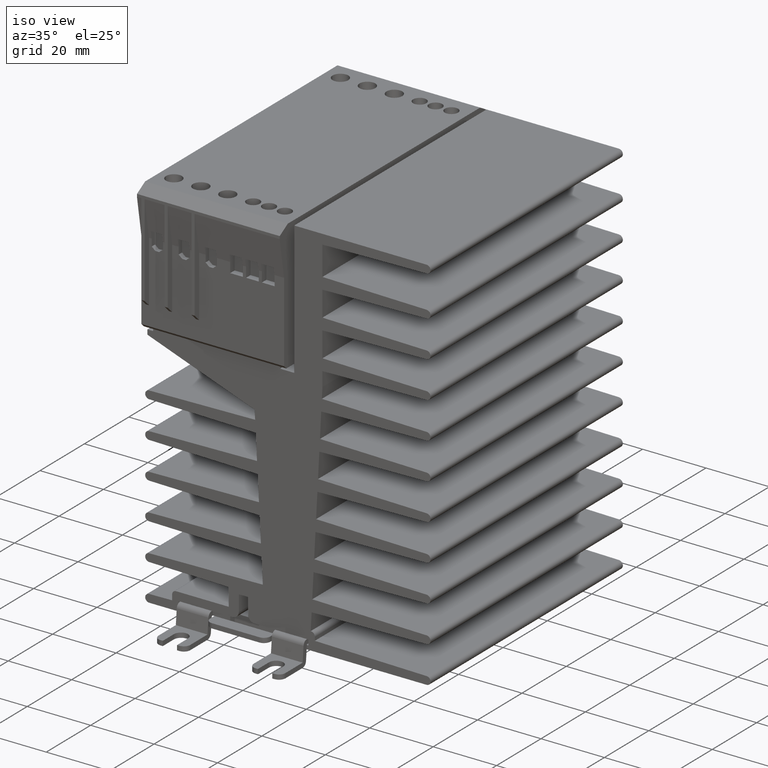
[diagram: clean part render]
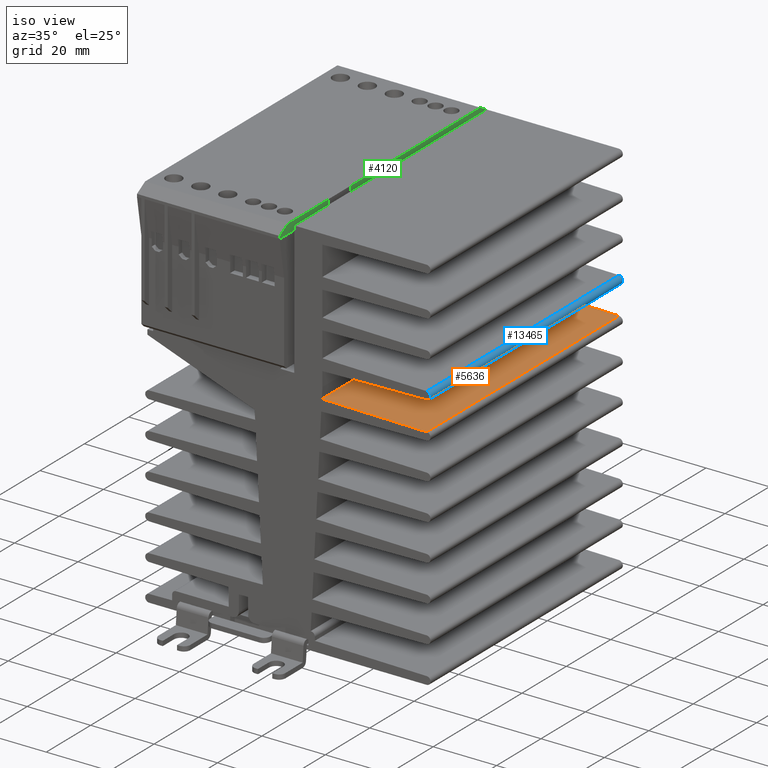
[diagram: same view with three faces highlighted in distinct colors, each labeled with its STEP entity id]
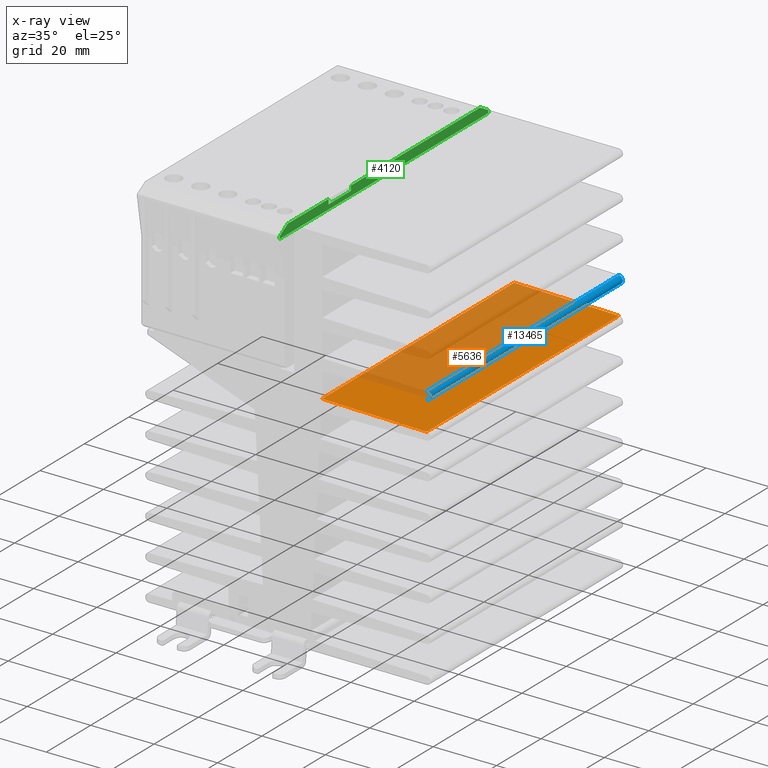
[diagram: x-ray of the same camera — body ghosted, the three highlighted faces saturated]
A machine part, iso view with three faces highlighted in distinct colors.
The next image is the same camera in x-ray (body ghosted, the three faces saturated) — at least one of them is partly hidden behind the body in this view.
Their STEP definitions:

[orange] entity #5636 — the highlighted planar face has unit normal (0.0175, 0, 0.9998).
#1420 = CARTESIAN_POINT ( 'NONE',  ( 2.609126594804984212, -1.704724409448818978, -0.2618185189391531442 ) ) ;
#1557 = AXIS2_PLACEMENT_3D ( 'NONE', #9576, #13004, #3228 ) ;
#1734 = DIRECTION ( 'NONE',  ( -0.9998476951563912696, 0.000000000000000000, 0.01745240643728300511 ) ) ;
#1838 = ORIENTED_EDGE ( 'NONE', *, *, #3974, .T. ) ;
#2679 = VERTEX_POINT ( 'NONE', #6639 ) ;
#2763 = LINE ( 'NONE', #1420, #12542 ) ;
#2831 = ORIENTED_EDGE ( 'NONE', *, *, #9963, .F. ) ;
#3228 = DIRECTION ( 'NONE',  ( -0.9998476951563912696, 0.000000000000000000, 0.01745240643728300511 ) ) ;
#3733 = LINE ( 'NONE', #11501, #7967 ) ;
#3974 = EDGE_CURVE ( 'NONE', #10356, #13199, #8660, .T. ) ;
#4226 = PLANE ( 'NONE',  #1557 ) ;
#4608 = ORIENTED_EDGE ( 'NONE', *, *, #9463, .T. ) ;
#4722 = EDGE_LOOP ( 'NONE', ( #2831, #4608, #1838, #7633 ) ) ;
#4853 = CARTESIAN_POINT ( 'NONE',  ( 1.307897383526978263, -1.704724409448818978, -0.2391054785698019935 ) ) ;
#5372 = VECTOR ( 'NONE', #12808, 39.37007874015748143 ) ;
#5402 = CARTESIAN_POINT ( 'NONE',  ( 2.609126594804984212, -1.704724409448818978, -0.2618185189391531442 ) ) ;
#5636 = ADVANCED_FACE ( 'NONE', ( #12795 ), #4226, .T. ) ;
#5991 = DIRECTION ( 'NONE',  ( 0.9998476951563912696, 0.000000000000000000, -0.01745240643728385513 ) ) ;
#6236 = CARTESIAN_POINT ( 'NONE',  ( 1.307897383526978263, -1.704724409448818978, -0.2391054785698023821 ) ) ;
#6639 = CARTESIAN_POINT ( 'NONE',  ( 2.609126594804984212, 1.704724409448818978, -0.2618185189391527556 ) ) ;
#7112 = DIRECTION ( 'NONE',  ( -0.000000000000000000, -1.000000000000000000, -0.000000000000000000 ) ) ;
#7424 = CARTESIAN_POINT ( 'NONE',  ( 1.307897383526978263, -1.704724409448818978, -0.2391054785698019935 ) ) ;
#7633 = ORIENTED_EDGE ( 'NONE', *, *, #13780, .T. ) ;
#7967 = VECTOR ( 'NONE', #1734, 39.37007874015748143 ) ;
#8660 = LINE ( 'NONE', #6236, #5372 ) ;
#9463 = EDGE_CURVE ( 'NONE', #2679, #10356, #3733, .T. ) ;
#9576 = CARTESIAN_POINT ( 'NONE',  ( 1.275590551181102317, -1.704724409448818978, -0.2385415607135799032 ) ) ;
#9832 = VERTEX_POINT ( 'NONE', #5402 ) ;
#9963 = EDGE_CURVE ( 'NONE', #2679, #9832, #2763, .T. ) ;
#10356 = VERTEX_POINT ( 'NONE', #12596 ) ;
#11501 = CARTESIAN_POINT ( 'NONE',  ( 1.275590551181102317, 1.704724409448818978, -0.2385415607135799032 ) ) ;
#12384 = VECTOR ( 'NONE', #5991, 39.37007874015748143 ) ;
#12542 = VECTOR ( 'NONE', #7112, 39.37007874015748143 ) ;
#12596 = CARTESIAN_POINT ( 'NONE',  ( 1.307897383526978263, 1.704724409448818978, -0.2391054785698016050 ) ) ;
#12795 = FACE_OUTER_BOUND ( 'NONE', #4722, .T. ) ;
#12808 = DIRECTION ( 'NONE',  ( 0.000000000000000000, -1.000000000000000000, 0.000000000000000000 ) ) ;
#13004 = DIRECTION ( 'NONE',  ( 0.01745240643728300511, 0.000000000000000000, 0.9998476951563912696 ) ) ;
#13199 = VERTEX_POINT ( 'NONE', #7424 ) ;
#13416 = LINE ( 'NONE', #4853, #12384 ) ;
#13780 = EDGE_CURVE ( 'NONE', #13199, #9832, #13416, .T. ) ;

[blue] entity #13465 — the highlighted cylindrical surface (edge-blend (fillet) strip) has radius 1.25 mm, axis along (0, 1, 0).
#74 = VERTEX_POINT ( 'NONE', #9982 ) ;
#233 = ORIENTED_EDGE ( 'NONE', *, *, #2324, .T. ) ;
#1237 = DIRECTION ( 'NONE',  ( 0.000000000000000000, 0.000000000000000000, 1.000000000000000000 ) ) ;
#1302 = CYLINDRICAL_SURFACE ( 'NONE', #2577, 0.04921259842519686012 ) ;
#1306 = CARTESIAN_POINT ( 'NONE',  ( 2.608267716535433323, 1.704724409448818978, 0.1456692913385826960 ) ) ;
#1375 = ORIENTED_EDGE ( 'NONE', *, *, #8641, .F. ) ;
#1534 = CIRCLE ( 'NONE', #9496, 0.04921259842519686012 ) ;
#1574 = LINE ( 'NONE', #4639, #9089 ) ;
#1979 = ORIENTED_EDGE ( 'NONE', *, *, #6791, .T. ) ;
#2181 = DIRECTION ( 'NONE',  ( 0.000000000000000000, 1.000000000000000000, 0.000000000000000000 ) ) ;
#2291 = LINE ( 'NONE', #11063, #10271 ) ;
#2324 = EDGE_CURVE ( 'NONE', #12872, #3004, #7615, .T. ) ;
#2562 = EDGE_LOOP ( 'NONE', ( #233, #1375, #1979, #6965 ) ) ;
#2577 = AXIS2_PLACEMENT_3D ( 'NONE', #4719, #10218, #9997 ) ;
#3004 = VERTEX_POINT ( 'NONE', #5205 ) ;
#3654 = FACE_OUTER_BOUND ( 'NONE', #2562, .T. ) ;
#4639 = CARTESIAN_POINT ( 'NONE',  ( 2.609126594804984212, -1.704724409448818978, 0.09646418823049350555 ) ) ;
#4719 = CARTESIAN_POINT ( 'NONE',  ( 2.608267716535433323, -1.704724409448818978, 0.1456692913385826960 ) ) ;
#5096 = VERTEX_POINT ( 'NONE', #5104 ) ;
#5104 = CARTESIAN_POINT ( 'NONE',  ( 2.609126594804984212, 1.704724409448818978, 0.09646418823049350555 ) ) ;
#5205 = CARTESIAN_POINT ( 'NONE',  ( 2.609126594804984212, -1.704724409448818978, 0.09646418823049350555 ) ) ;
#5346 = AXIS2_PLACEMENT_3D ( 'NONE', #5518, #2181, #8656 ) ;
#5518 = CARTESIAN_POINT ( 'NONE',  ( 2.608267716535433323, -1.704724409448818978, 0.1456692913385826960 ) ) ;
#5920 = DIRECTION ( 'NONE',  ( 0.000000000000000000, -1.000000000000000000, 0.000000000000000000 ) ) ;
#6791 = EDGE_CURVE ( 'NONE', #5096, #74, #1534, .T. ) ;
#6965 = ORIENTED_EDGE ( 'NONE', *, *, #9675, .T. ) ;
#7615 = CIRCLE ( 'NONE', #5346, 0.04921259842519686012 ) ;
#8641 = EDGE_CURVE ( 'NONE', #5096, #3004, #1574, .T. ) ;
#8656 = DIRECTION ( 'NONE',  ( 0.000000000000000000, 0.000000000000000000, -1.000000000000000000 ) ) ;
#9089 = VECTOR ( 'NONE', #5920, 39.37007874015748143 ) ;
#9496 = AXIS2_PLACEMENT_3D ( 'NONE', #1306, #11007, #1237 ) ;
#9675 = EDGE_CURVE ( 'NONE', #74, #12872, #2291, .T. ) ;
#9982 = CARTESIAN_POINT ( 'NONE',  ( 2.609126594804984212, 1.704724409448818978, 0.1948743944466739819 ) ) ;
#9997 = DIRECTION ( 'NONE',  ( 0.000000000000000000, 0.000000000000000000, -1.000000000000000000 ) ) ;
#10218 = DIRECTION ( 'NONE',  ( 0.000000000000000000, 1.000000000000000000, 0.000000000000000000 ) ) ;
#10271 = VECTOR ( 'NONE', #11136, 39.37007874015748143 ) ;
#11007 = DIRECTION ( 'NONE',  ( -0.000000000000000000, -1.000000000000000000, -0.000000000000000000 ) ) ;
#11063 = CARTESIAN_POINT ( 'NONE',  ( 2.609126594804984212, -1.704724409448818978, 0.1948743944466736211 ) ) ;
#11136 = DIRECTION ( 'NONE',  ( -0.000000000000000000, -1.000000000000000000, -0.000000000000000000 ) ) ;
#11542 = CARTESIAN_POINT ( 'NONE',  ( 2.609126594804984212, -1.704724409448818978, 0.1948743944466736211 ) ) ;
#12872 = VERTEX_POINT ( 'NONE', #11542 ) ;
#13465 = ADVANCED_FACE ( 'NONE', ( #3654 ), #1302, .T. ) ;

[green] entity #4120 — the highlighted planar face has unit normal (1, 0, 0).
#131 = CARTESIAN_POINT ( 'NONE',  ( 0.8858267716535432879, 1.850393700787401619, 1.496062992125984259 ) ) ;
#265 = EDGE_LOOP ( 'NONE', ( #12419, #428, #3321, #13798, #8083, #6431, #12925, #7709, #1421, #4694 ) ) ;
#428 = ORIENTED_EDGE ( 'NONE', *, *, #6310, .T. ) ;
#506 = VECTOR ( 'NONE', #10159, 39.37007874015748143 ) ;
#603 = DIRECTION ( 'NONE',  ( -0.000000000000000000, -0.000000000000000000, 1.000000000000000000 ) ) ;
#604 = LINE ( 'NONE', #12718, #1867 ) ;
#780 = LINE ( 'NONE', #5121, #13379 ) ;
#828 = EDGE_CURVE ( 'NONE', #10119, #3764, #8766, .T. ) ;
#1421 = ORIENTED_EDGE ( 'NONE', *, *, #4708, .T. ) ;
#1867 = VECTOR ( 'NONE', #4944, 39.37007874015748143 ) ;
#1879 = CARTESIAN_POINT ( 'NONE',  ( 0.8858267716535432879, -0.9842519685039370358, 1.614173228346456712 ) ) ;
#1899 = VERTEX_POINT ( 'NONE', #9766 ) ;
#1969 = VECTOR ( 'NONE', #9665, 39.37007874015748143 ) ;
#2236 = VERTEX_POINT ( 'NONE', #5912 ) ;
#2388 = PLANE ( 'NONE',  #4457 ) ;
#2698 = CARTESIAN_POINT ( 'NONE',  ( 0.8858267716535432879, -0.5905511811023621549, 1.555118110236220597 ) ) ;
#2874 = LINE ( 'NONE', #5885, #11562 ) ;
#3135 = DIRECTION ( 'NONE',  ( -0.000000000000000000, -0.000000000000000000, -1.000000000000000000 ) ) ;
#3321 = ORIENTED_EDGE ( 'NONE', *, *, #10801, .T. ) ;
#3730 = CARTESIAN_POINT ( 'NONE',  ( 0.8858267716535432879, -1.850393700787401619, 1.496062992125984259 ) ) ;
#3764 = VERTEX_POINT ( 'NONE', #131 ) ;
#3992 = EDGE_CURVE ( 'NONE', #13442, #3764, #5313, .T. ) ;
#4120 = ADVANCED_FACE ( 'NONE', ( #5591 ), #2388, .T. ) ;
#4175 = LINE ( 'NONE', #6450, #11089 ) ;
#4204 = EDGE_CURVE ( 'NONE', #7752, #13442, #8422, .T. ) ;
#4457 = AXIS2_PLACEMENT_3D ( 'NONE', #3730, #10365, #4595 ) ;
#4575 = CARTESIAN_POINT ( 'NONE',  ( 0.8858267716535432879, -1.850393700787401619, 1.496062992125984259 ) ) ;
#4595 = DIRECTION ( 'NONE',  ( 0.000000000000000000, 0.000000000000000000, -1.000000000000000000 ) ) ;
#4661 = CARTESIAN_POINT ( 'NONE',  ( 0.8858267716535432879, -1.704724409448818978, 1.614173228346456712 ) ) ;
#4694 = ORIENTED_EDGE ( 'NONE', *, *, #10650, .T. ) ;
#4708 = EDGE_CURVE ( 'NONE', #10119, #1899, #780, .T. ) ;
#4799 = DIRECTION ( 'NONE',  ( -0.000000000000000000, -1.000000000000000000, -0.000000000000000000 ) ) ;
#4944 = DIRECTION ( 'NONE',  ( -0.000000000000000000, -1.000000000000000000, -0.000000000000000000 ) ) ;
#5003 = CARTESIAN_POINT ( 'NONE',  ( 0.8858267716535432879, -1.850393700787401619, 1.496062992125984259 ) ) ;
#5121 = CARTESIAN_POINT ( 'NONE',  ( 0.8858267716535432879, 1.850393700787401619, 1.529921259842519587 ) ) ;
#5313 = LINE ( 'NONE', #9592, #1969 ) ;
#5455 = CARTESIAN_POINT ( 'NONE',  ( 0.8858267716535432879, 1.850393700787401619, 1.529921259842519587 ) ) ;
#5534 = EDGE_CURVE ( 'NONE', #5550, #12838, #2874, .T. ) ;
#5550 = VERTEX_POINT ( 'NONE', #11513 ) ;
#5591 = FACE_OUTER_BOUND ( 'NONE', #265, .T. ) ;
#5885 = CARTESIAN_POINT ( 'NONE',  ( 0.8858267716535432879, -0.5905511811023621549, 1.614173228346456712 ) ) ;
#5912 = CARTESIAN_POINT ( 'NONE',  ( 0.8858267716535432879, -0.9842519685039370358, 1.614173228346456712 ) ) ;
#6310 = EDGE_CURVE ( 'NONE', #12838, #10012, #4175, .T. ) ;
#6431 = ORIENTED_EDGE ( 'NONE', *, *, #4204, .T. ) ;
#6450 = CARTESIAN_POINT ( 'NONE',  ( 0.8858267716535432879, -1.850393700787401619, 1.555118110236220597 ) ) ;
#6555 = CARTESIAN_POINT ( 'NONE',  ( 0.8858267716535432879, 1.850393700787401619, 1.496062992125984259 ) ) ;
#7075 = CARTESIAN_POINT ( 'NONE',  ( 0.8858267716535432879, -1.704724409448818978, 1.614173228346456712 ) ) ;
#7385 = CARTESIAN_POINT ( 'NONE',  ( 0.8858267716535432879, -0.9842519685039370358, 1.555118110236220597 ) ) ;
#7536 = VECTOR ( 'NONE', #603, 39.37007874015748143 ) ;
#7709 = ORIENTED_EDGE ( 'NONE', *, *, #828, .F. ) ;
#7752 = VERTEX_POINT ( 'NONE', #12522 ) ;
#7999 = VECTOR ( 'NONE', #4799, 39.37007874015748143 ) ;
#8007 = VECTOR ( 'NONE', #3135, 39.37007874015748143 ) ;
#8083 = ORIENTED_EDGE ( 'NONE', *, *, #10669, .T. ) ;
#8422 = LINE ( 'NONE', #5003, #10180 ) ;
#8766 = LINE ( 'NONE', #6555, #8007 ) ;
#9283 = DIRECTION ( 'NONE',  ( 0.000000000000000000, 0.000000000000000000, -1.000000000000000000 ) ) ;
#9592 = CARTESIAN_POINT ( 'NONE',  ( 0.8858267716535432879, 2.364718897637795262E-16, 1.496062992125984259 ) ) ;
#9665 = DIRECTION ( 'NONE',  ( 0.000000000000000000, 1.000000000000000000, 0.000000000000000000 ) ) ;
#9766 = CARTESIAN_POINT ( 'NONE',  ( 0.8858267716535432879, 1.704724409448818978, 1.614173228346456712 ) ) ;
#10012 = VERTEX_POINT ( 'NONE', #7385 ) ;
#10119 = VERTEX_POINT ( 'NONE', #5455 ) ;
#10159 = DIRECTION ( 'NONE',  ( 0.000000000000000000, -0.8656397772875390473, -0.5006673306473869989 ) ) ;
#10180 = VECTOR ( 'NONE', #9283, 39.37007874015748143 ) ;
#10365 = DIRECTION ( 'NONE',  ( 1.000000000000000000, 0.000000000000000000, 0.000000000000000000 ) ) ;
#10439 = LINE ( 'NONE', #1879, #7536 ) ;
#10650 = EDGE_CURVE ( 'NONE', #1899, #5550, #12373, .T. ) ;
#10669 = EDGE_CURVE ( 'NONE', #10757, #7752, #13299, .T. ) ;
#10757 = VERTEX_POINT ( 'NONE', #7075 ) ;
#10801 = EDGE_CURVE ( 'NONE', #10012, #2236, #10439, .T. ) ;
#11089 = VECTOR ( 'NONE', #12739, 39.37007874015748143 ) ;
#11513 = CARTESIAN_POINT ( 'NONE',  ( 0.8858267716535432879, -0.5905511811023621549, 1.614173228346456712 ) ) ;
#11562 = VECTOR ( 'NONE', #12726, 39.37007874015748143 ) ;
#12055 = EDGE_CURVE ( 'NONE', #2236, #10757, #604, .T. ) ;
#12298 = CARTESIAN_POINT ( 'NONE',  ( 0.8858267716535432879, -1.850393700787401619, 1.614173228346456712 ) ) ;
#12373 = LINE ( 'NONE', #12298, #7999 ) ;
#12419 = ORIENTED_EDGE ( 'NONE', *, *, #5534, .T. ) ;
#12522 = CARTESIAN_POINT ( 'NONE',  ( 0.8858267716535432879, -1.850393700787401619, 1.529921259842519587 ) ) ;
#12718 = CARTESIAN_POINT ( 'NONE',  ( 0.8858267716535432879, -1.850393700787401619, 1.614173228346456712 ) ) ;
#12726 = DIRECTION ( 'NONE',  ( -0.000000000000000000, -0.000000000000000000, -1.000000000000000000 ) ) ;
#12739 = DIRECTION ( 'NONE',  ( -0.000000000000000000, -1.000000000000000000, -0.000000000000000000 ) ) ;
#12838 = VERTEX_POINT ( 'NONE', #2698 ) ;
#12925 = ORIENTED_EDGE ( 'NONE', *, *, #3992, .T. ) ;
#13299 = LINE ( 'NONE', #4661, #506 ) ;
#13379 = VECTOR ( 'NONE', #13834, 39.37007874015748143 ) ;
#13442 = VERTEX_POINT ( 'NONE', #4575 ) ;
#13798 = ORIENTED_EDGE ( 'NONE', *, *, #12055, .T. ) ;
#13834 = DIRECTION ( 'NONE',  ( 0.000000000000000000, -0.8656397772875393803, 0.5006673306473862217 ) ) ;